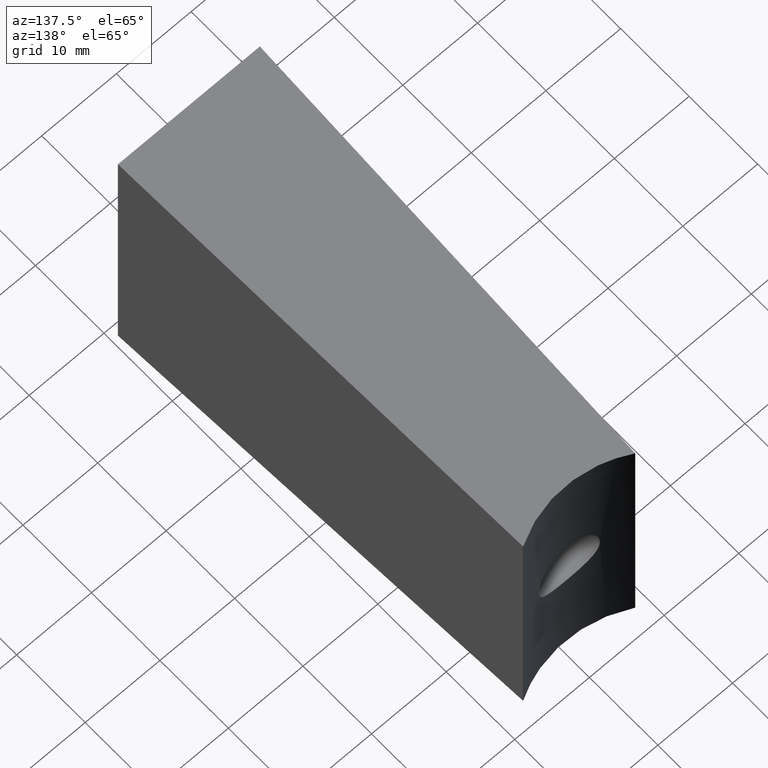
[diagram: clean part render]
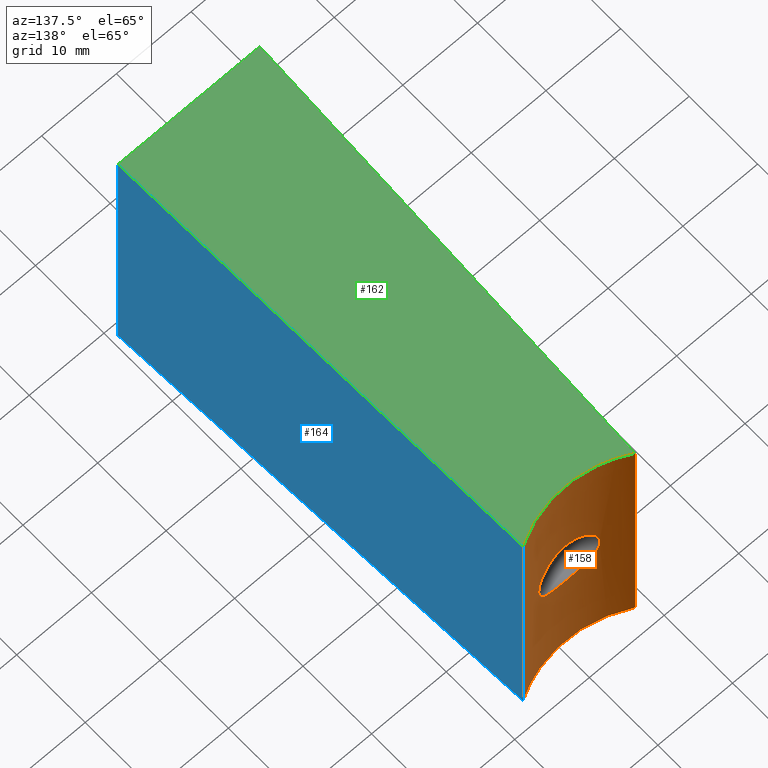
[diagram: same view with three faces highlighted in distinct colors, each labeled with its STEP entity id]
A machine part, auxiliary view with three faces highlighted in distinct colors.
Their STEP definitions:

[orange] entity #158 — the highlighted cylindrical surface (partial cylindrical patch) has radius 15 mm, axis along (0, 0, 1).
#23=FACE_BOUND('',#37,.T.);
#26=B_SPLINE_CURVE_WITH_KNOTS('',3,(#234,#235,#236,#237,#238,#239,#240,
#241,#242,#243,#244,#245,#246,#247,#248,#249,#250,#251,#252,#253,#254,#255,
#256,#257,#258,#259,#260,#261,#262,#263,#264,#265,#266,#267),
 .UNSPECIFIED.,.T.,.F.,(4,2,2,2,2,2,2,2,2,2,2,2,2,2,2,2,4),(0.,0.155312931765757,
0.310625863531513,0.465907391265895,0.621188919000277,0.776470446734659,
0.931751974469041,1.0870649062348,1.24237783800055,1.39769076976631,1.55300370153207,
1.70828522926645,1.86356675700083,2.01884828473521,2.1741298124696,2.32944274423535,
2.48475567600111),.UNSPECIFIED.);
#27=FACE_OUTER_BOUND('',#36,.T.);
#36=EDGE_LOOP('',(#116,#117,#118,#119));
#37=EDGE_LOOP('',(#120));
#48=LINE('',#229,#64);
#49=LINE('',#232,#65);
#64=VECTOR('',#187,36.0190322779408);
#65=VECTOR('',#190,36.0190322779408);
#80=ELLIPSE('',#170,15.0091431644823,15.);
#81=ELLIPSE('',#171,15.0091431644823,15.);
#82=VERTEX_POINT('',#225);
#83=VERTEX_POINT('',#226);
#84=VERTEX_POINT('',#228);
#85=VERTEX_POINT('',#230);
#86=VERTEX_POINT('',#233);
#96=EDGE_CURVE('',#82,#83,#80,.T.);
#97=EDGE_CURVE('',#84,#82,#48,.T.);
#98=EDGE_CURVE('',#85,#84,#81,.T.);
#99=EDGE_CURVE('',#83,#85,#49,.T.);
#100=EDGE_CURVE('',#86,#86,#26,.T.);
#116=ORIENTED_EDGE('',*,*,#96,.F.);
#117=ORIENTED_EDGE('',*,*,#97,.F.);
#118=ORIENTED_EDGE('',*,*,#98,.F.);
#119=ORIENTED_EDGE('',*,*,#99,.F.);
#120=ORIENTED_EDGE('',*,*,#100,.F.);
#156=CYLINDRICAL_SURFACE('',#169,15.);
#158=ADVANCED_FACE('',(#27,#23),#156,.F.);
#169=AXIS2_PLACEMENT_3D('',#224,#183,#184);
#170=AXIS2_PLACEMENT_3D('',#227,#185,#186);
#171=AXIS2_PLACEMENT_3D('',#231,#188,#189);
#183=DIRECTION('center_axis',(0.,0.,1.));
#184=DIRECTION('ref_axis',(-0.500599911076305,-0.865678767806162,0.));
#185=DIRECTION('center_axis',(0.,-0.0348994967025006,-0.999390827019096));
#186=DIRECTION('ref_axis',(7.10109892323697E-15,-0.999390827019096,0.0348994967025006));
#187=DIRECTION('',(0.,0.,1.));
#188=DIRECTION('center_axis',(0.,-0.0348994967025011,0.999390827019096));
#189=DIRECTION('ref_axis',(1.33885302615197E-14,-0.999390827019096,-0.0348994967025011));
#190=DIRECTION('',(0.,0.,-1.));
#224=CARTESIAN_POINT('Origin',(0.,41.5,0.));
#225=CARTESIAN_POINT('',(7.48331477354788,28.5,18.0095161389704));
#226=CARTESIAN_POINT('',(-7.48331477354788,28.5,18.0095161389704));
#227=CARTESIAN_POINT('Origin',(0.,41.5,17.5555461355777));
#228=CARTESIAN_POINT('',(7.48331477354789,28.5,-18.0095161389704));
#229=CARTESIAN_POINT('',(7.48331477354788,28.5,0.));
#230=CARTESIAN_POINT('',(-7.48331477354789,28.5,-18.0095161389704));
#231=CARTESIAN_POINT('Origin',(0.,41.5,-17.5555461355777));
#232=CARTESIAN_POINT('',(-7.48331477354788,28.5,0.));
#233=CARTESIAN_POINT('',(4.1,27.0712093368848,0.));
#234=CARTESIAN_POINT('Ctrl Pts',(4.1,27.0712093368848,0.));
#235=CARTESIAN_POINT('Ctrl Pts',(4.1,27.0712093368848,-0.517709772552522));
#236=CARTESIAN_POINT('Ctrl Pts',(3.99599394330733,27.0404371714704,-1.06800699058504));
#237=CARTESIAN_POINT('Ctrl Pts',(3.57678481590098,26.9310764424968,-2.07731045986194));
#238=CARTESIAN_POINT('Ctrl Pts',(3.26171334312637,26.8542569852714,-2.53656226260332));
#239=CARTESIAN_POINT('Ctrl Pts',(2.53663557480928,26.711423762681,-3.26164003092041));
#240=CARTESIAN_POINT('Ctrl Pts',(2.07735356602485,26.6358767058198,-3.57676849745034));
#241=CARTESIAN_POINT('Ctrl Pts',(1.06794181394767,26.5294602833011,-3.99601942858612));
#242=CARTESIAN_POINT('Ctrl Pts',(0.517605092447941,26.5,-4.1));
#243=CARTESIAN_POINT('Ctrl Pts',(-0.51760509244794,26.5,-4.1));
#244=CARTESIAN_POINT('Ctrl Pts',(-1.06794181394767,26.5294602833011,-3.99601942858612));
#245=CARTESIAN_POINT('Ctrl Pts',(-2.07735356602485,26.6358767058198,-3.57676849745034));
#246=CARTESIAN_POINT('Ctrl Pts',(-2.53663557480928,26.711423762681,-3.26164003092041));
#247=CARTESIAN_POINT('Ctrl Pts',(-3.26171334312637,26.8542569852714,-2.53656226260332));
#248=CARTESIAN_POINT('Ctrl Pts',(-3.57678481590098,26.9310764424968,-2.07731045986194));
#249=CARTESIAN_POINT('Ctrl Pts',(-3.99599394330733,27.0404371714704,-1.06800699058504));
#250=CARTESIAN_POINT('Ctrl Pts',(-4.1,27.0712093368848,-0.517709772552521));
#251=CARTESIAN_POINT('Ctrl Pts',(-4.1,27.0712093368848,0.517709772552521));
#252=CARTESIAN_POINT('Ctrl Pts',(-3.99599394330733,27.0404371714704,1.06800699058503));
#253=CARTESIAN_POINT('Ctrl Pts',(-3.57678481590098,26.9310764424968,2.07731045986194));
#254=CARTESIAN_POINT('Ctrl Pts',(-3.26171334312637,26.8542569852714,2.53656226260332));
#255=CARTESIAN_POINT('Ctrl Pts',(-2.53663557480928,26.711423762681,3.26164003092041));
#256=CARTESIAN_POINT('Ctrl Pts',(-2.07735356602485,26.6358767058198,3.57676849745034));
#257=CARTESIAN_POINT('Ctrl Pts',(-1.06794181394767,26.5294602833011,3.99601942858612));
#258=CARTESIAN_POINT('Ctrl Pts',(-0.517605092447941,26.5,4.1));
#259=CARTESIAN_POINT('Ctrl Pts',(0.51760509244794,26.5,4.1));
#260=CARTESIAN_POINT('Ctrl Pts',(1.06794181394767,26.5294602833011,3.99601942858612));
#261=CARTESIAN_POINT('Ctrl Pts',(2.07735356602485,26.6358767058198,3.57676849745034));
#262=CARTESIAN_POINT('Ctrl Pts',(2.53663557480928,26.711423762681,3.26164003092041));
#263=CARTESIAN_POINT('Ctrl Pts',(3.26171334312637,26.8542569852714,2.53656226260332));
#264=CARTESIAN_POINT('Ctrl Pts',(3.57678481590098,26.9310764424968,2.07731045986194));
#265=CARTESIAN_POINT('Ctrl Pts',(3.99599394330733,27.0404371714704,1.06800699058504));
#266=CARTESIAN_POINT('Ctrl Pts',(4.1,27.0712093368848,0.517709772552523));
#267=CARTESIAN_POINT('Ctrl Pts',(4.1,27.0712093368848,1.38777878078145E-16));

[blue] entity #164 — the highlighted planar face has unit normal (-0.9994, -0.0349, 0).
#20=PLANE('',#178);
#33=FACE_OUTER_BOUND('',#44,.T.);
#44=EDGE_LOOP('',(#143,#144,#145,#146));
#51=LINE('',#272,#67);
#56=LINE('',#281,#72);
#60=LINE('',#292,#76);
#62=LINE('',#296,#78);
#67=VECTOR('',#194,57.0694668978259);
#72=VECTOR('',#201,36.0190322779408);
#76=VECTOR('',#211,57.0694668978259);
#78=VECTOR('',#217,40.);
#87=VERTEX_POINT('',#269);
#88=VERTEX_POINT('',#271);
#91=VERTEX_POINT('',#279);
#95=VERTEX_POINT('',#290);
#102=EDGE_CURVE('',#88,#87,#51,.T.);
#107=EDGE_CURVE('',#91,#87,#56,.T.);
#112=EDGE_CURVE('',#91,#95,#60,.T.);
#114=EDGE_CURVE('',#95,#88,#62,.T.);
#143=ORIENTED_EDGE('',*,*,#102,.T.);
#144=ORIENTED_EDGE('',*,*,#107,.F.);
#145=ORIENTED_EDGE('',*,*,#112,.T.);
#146=ORIENTED_EDGE('',*,*,#114,.T.);
#164=ADVANCED_FACE('',(#33),#20,.F.);
#178=AXIS2_PLACEMENT_3D('',#295,#215,#216);
#194=DIRECTION('',(-0.0348782627423745,0.998782765958718,0.0348782627423747));
#201=DIRECTION('',(0.,0.,-1.));
#211=DIRECTION('',(0.0348782627423745,-0.998782765958718,0.0348782627423742));
#215=DIRECTION('center_axis',(-0.999390827019096,-0.0348994967025008,0.));
#216=DIRECTION('ref_axis',(-0.0348994967025009,0.999390827019096,0.));
#217=DIRECTION('',(0.,0.,-1.));
#269=CARTESIAN_POINT('',(7.50951613897039,28.5,-18.0095161389704));
#271=CARTESIAN_POINT('',(9.5,-28.5,-20.));
#272=CARTESIAN_POINT('',(9.47597425906446,-27.8119927972601,-19.9759742590645));
#279=CARTESIAN_POINT('',(7.50951613897039,28.5,18.0095161389704));
#281=CARTESIAN_POINT('',(7.50951613897039,28.5,10.));
#290=CARTESIAN_POINT('',(9.5,-28.5,20.));
#292=CARTESIAN_POINT('',(8.50627289784087,-0.0433790084732967,19.0062728978409));
#295=CARTESIAN_POINT('Origin',(9.5,-28.5,20.));
#296=CARTESIAN_POINT('',(9.5,-28.5,0.));

[green] entity #162 — the highlighted planar face has unit normal (0, -0.0349, -0.9994).
#18=PLANE('',#176);
#31=FACE_OUTER_BOUND('',#42,.T.);
#42=EDGE_LOOP('',(#133,#134,#135,#136,#137,#138));
#55=LINE('',#280,#71);
#57=LINE('',#287,#73);
#58=LINE('',#289,#74);
#59=LINE('',#291,#75);
#60=LINE('',#292,#76);
#71=VECTOR('',#200,0.026201365422508);
#73=VECTOR('',#208,0.0262013654225046);
#74=VECTOR('',#209,57.0694668978259);
#75=VECTOR('',#210,19.);
#76=VECTOR('',#211,57.0694668978259);
#80=ELLIPSE('',#170,15.0091431644823,15.);
#82=VERTEX_POINT('',#225);
#83=VERTEX_POINT('',#226);
#91=VERTEX_POINT('',#279);
#93=VERTEX_POINT('',#286);
#94=VERTEX_POINT('',#288);
#95=VERTEX_POINT('',#290);
#96=EDGE_CURVE('',#82,#83,#80,.T.);
#106=EDGE_CURVE('',#82,#91,#55,.T.);
#109=EDGE_CURVE('',#93,#83,#57,.T.);
#110=EDGE_CURVE('',#94,#93,#58,.T.);
#111=EDGE_CURVE('',#94,#95,#59,.T.);
#112=EDGE_CURVE('',#91,#95,#60,.T.);
#133=ORIENTED_EDGE('',*,*,#96,.T.);
#134=ORIENTED_EDGE('',*,*,#109,.F.);
#135=ORIENTED_EDGE('',*,*,#110,.F.);
#136=ORIENTED_EDGE('',*,*,#111,.T.);
#137=ORIENTED_EDGE('',*,*,#112,.F.);
#138=ORIENTED_EDGE('',*,*,#106,.F.);
#162=ADVANCED_FACE('',(#31),#18,.F.);
#170=AXIS2_PLACEMENT_3D('',#227,#185,#186);
#176=AXIS2_PLACEMENT_3D('',#285,#206,#207);
#185=DIRECTION('center_axis',(0.,-0.0348994967025006,-0.999390827019096));
#186=DIRECTION('ref_axis',(7.10109892323697E-15,-0.999390827019096,0.0348994967025006));
#200=DIRECTION('',(1.,0.,0.));
#206=DIRECTION('center_axis',(0.,-0.0348994967025006,-0.999390827019096));
#207=DIRECTION('ref_axis',(0.,-0.999390827019096,0.0348994967025007));
#208=DIRECTION('',(1.,0.,0.));
#209=DIRECTION('',(0.0348782627423745,0.998782765958718,-0.0348782627423742));
#210=DIRECTION('',(1.,0.,0.));
#211=DIRECTION('',(0.0348782627423745,-0.998782765958718,0.0348782627423742));
#225=CARTESIAN_POINT('',(7.48331477354788,28.5,18.0095161389704));
#226=CARTESIAN_POINT('',(-7.48331477354788,28.5,18.0095161389704));
#227=CARTESIAN_POINT('Origin',(0.,41.5,17.5555461355777));
#279=CARTESIAN_POINT('',(7.50951613897039,28.5,18.0095161389704));
#280=CARTESIAN_POINT('',(9.75,28.5,18.0095161389704));
#285=CARTESIAN_POINT('Origin',(10.,28.5,18.0095161389704));
#286=CARTESIAN_POINT('',(-7.50951613897039,28.5,18.0095161389704));
#287=CARTESIAN_POINT('',(9.75,28.5,18.0095161389704));
#288=CARTESIAN_POINT('',(-9.5,-28.5,20.));
#289=CARTESIAN_POINT('',(-7.5000767402595,28.7703090123235,18.0000767402595));
#290=CARTESIAN_POINT('',(9.5,-28.5,20.));
#291=CARTESIAN_POINT('',(9.5,-28.5,20.));
#292=CARTESIAN_POINT('',(8.50627289784087,-0.0433790084732967,19.0062728978409));